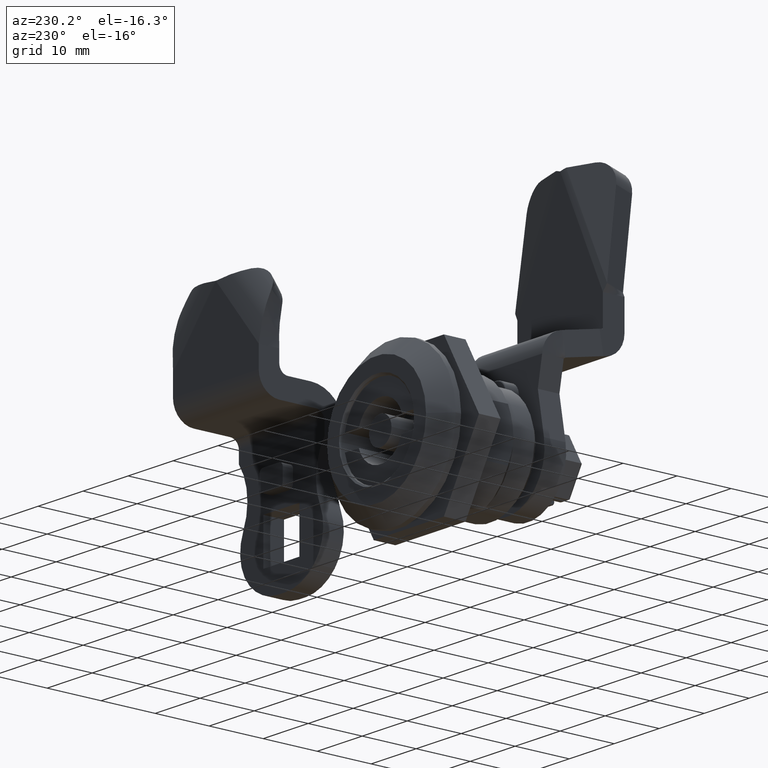
[diagram: clean part render]
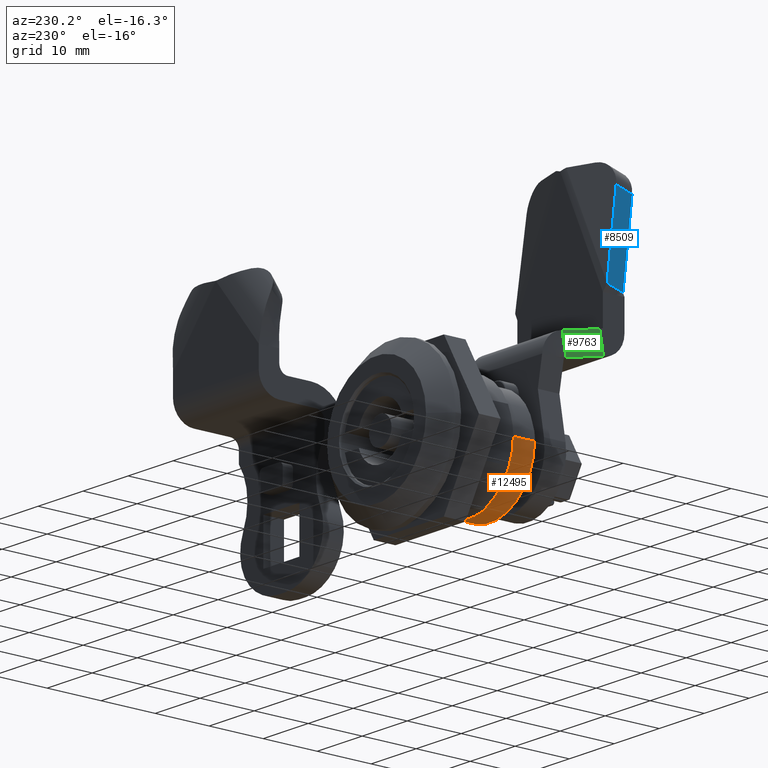
[diagram: same view with three faces highlighted in distinct colors, each labeled with its STEP entity id]
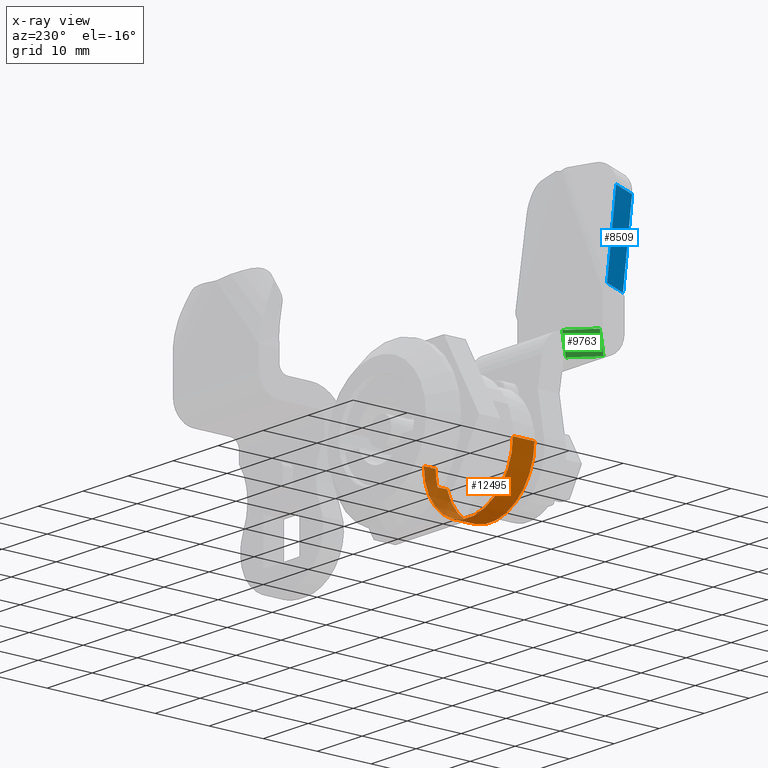
[diagram: x-ray of the same camera — body ghosted, the three highlighted faces saturated]
A machine part, auxiliary view with three faces highlighted in distinct colors.
The next image is the same camera in x-ray (body ghosted, the three faces saturated) — at least one of them is partly hidden behind the body in this view.
Their STEP definitions:

[orange] entity #12495 — the highlighted cylindrical surface (partial cylindrical patch) has radius 9.9 mm, axis along (0, -1, 0).
#1 = B_SPLINE_CURVE_WITH_KNOTS ( 'NONE', 3,
 ( #12090, #13045, #9849, #12974 ),
 .UNSPECIFIED., .F., .F.,
 ( 4, 4 ),
 ( 0.000000000000000000, 1.000000000000000000 ),
 .UNSPECIFIED. ) ;
#266 = CARTESIAN_POINT ( 'NONE',  ( -0.3897637795275589179, -0.6692913385826771977, 1.591810121962477045E-11 ) ) ;
#277 = ORIENTED_EDGE ( 'NONE', *, *, #12113, .F. ) ;
#343 = CARTESIAN_POINT ( 'NONE',  ( -0.3897637795275590844, -0.6692913385826771977, 0.000000000000000000 ) ) ;
#403 = CARTESIAN_POINT ( 'NONE',  ( 0.3738499401279838374, -0.6692913386096640549, -0.1102362285134667330 ) ) ;
#609 = CARTESIAN_POINT ( 'NONE',  ( 0.3897637795275590844, -0.5984251968503937480, 0.000000000000000000 ) ) ;
#818 = CARTESIAN_POINT ( 'NONE',  ( -0.3897637795275590844, -0.5118110236220472231, 0.000000000000000000 ) ) ;
#819 = VERTEX_POINT ( 'NONE', #3461 ) ;
#1255 = FACE_OUTER_BOUND ( 'NONE', #9138, .T. ) ;
#2036 = DIRECTION ( 'NONE',  ( -0.000000000000000000, 1.000000000000000000, -0.000000000000000000 ) ) ;
#2385 = LINE ( 'NONE', #343, #2496 ) ;
#2394 = EDGE_CURVE ( 'NONE', #12945, #13118, #4811, .T. ) ;
#2437 = VERTEX_POINT ( 'NONE', #818 ) ;
#2496 = VECTOR ( 'NONE', #4405, 39.37007874015748143 ) ;
#2687 = VERTEX_POINT ( 'NONE', #266 ) ;
#3189 = ORIENTED_EDGE ( 'NONE', *, *, #4967, .T. ) ;
#3461 = CARTESIAN_POINT ( 'NONE',  ( 0.3897639248009692192, -0.5984253608107118483, -3.134742717868620018E-11 ) ) ;
#3922 = LINE ( 'NONE', #609, #4865 ) ;
#3988 = CARTESIAN_POINT ( 'NONE',  ( 0.000000000000000000, -0.6692913385826771977, 0.000000000000000000 ) ) ;
#4134 = CARTESIAN_POINT ( 'NONE',  ( 0.3738527314198610840, -0.5984294946815180705, -0.1102335667094647975 ) ) ;
#4390 = VERTEX_POINT ( 'NONE', #6023 ) ;
#4405 = DIRECTION ( 'NONE',  ( 0.000000000000000000, 1.000000000000000000, 0.000000000000000000 ) ) ;
#4735 = DIRECTION ( 'NONE',  ( 0.000000000000000000, 1.000000000000000000, 0.000000000000000000 ) ) ;
#4811 = LINE ( 'NONE', #6843, #8012 ) ;
#4865 = VECTOR ( 'NONE', #4735, 39.37007874015748143 ) ;
#4967 = EDGE_CURVE ( 'NONE', #819, #13118, #1, .T. ) ;
#5117 = ORIENTED_EDGE ( 'NONE', *, *, #11986, .T. ) ;
#5122 = CARTESIAN_POINT ( 'NONE',  ( 0.000000000000000000, 0.2007874015748031815, 0.000000000000000000 ) ) ;
#5893 = ORIENTED_EDGE ( 'NONE', *, *, #2394, .F. ) ;
#6023 = CARTESIAN_POINT ( 'NONE',  ( 0.3897637795275590844, -0.5118110236220472231, 0.000000000000000000 ) ) ;
#6843 = CARTESIAN_POINT ( 'NONE',  ( 0.3738499377850819094, -0.6692913385826771977, -0.1102362365544925366 ) ) ;
#7614 = ORIENTED_EDGE ( 'NONE', *, *, #12568, .T. ) ;
#8012 = VECTOR ( 'NONE', #9750, 39.37007874015748143 ) ;
#8106 = DIRECTION ( 'NONE',  ( 0.000000000000000000, 0.000000000000000000, -1.000000000000000000 ) ) ;
#8232 = ORIENTED_EDGE ( 'NONE', *, *, #13019, .T. ) ;
#9138 = EDGE_LOOP ( 'NONE', ( #5893, #8232, #5117, #7614, #277, #3189 ) ) ;
#9242 = DIRECTION ( 'NONE',  ( 0.000000000000000000, -1.000000000000000000, 0.000000000000000000 ) ) ;
#9638 = DIRECTION ( 'NONE',  ( -1.000000000000000000, 0.000000000000000000, 0.000000000000000000 ) ) ;
#9750 = DIRECTION ( 'NONE',  ( 0.000000000000000000, 1.000000000000000000, 0.000000000000000000 ) ) ;
#9849 = CARTESIAN_POINT ( 'NONE',  ( 0.3843863750908347865, -0.5984251968503936370, -0.07450346059388258946 ) ) ;
#10593 = CIRCLE ( 'NONE', #10798, 0.3897637795275590844 ) ;
#10595 = CYLINDRICAL_SURFACE ( 'NONE', #11255, 0.3897637795275590844 ) ;
#10798 = AXIS2_PLACEMENT_3D ( 'NONE', #11753, #11943, #9638 ) ;
#11025 = CIRCLE ( 'NONE', #12111, 0.3897637795275590844 ) ;
#11255 = AXIS2_PLACEMENT_3D ( 'NONE', #5122, #9242, #13394 ) ;
#11753 = CARTESIAN_POINT ( 'NONE',  ( 0.000000000000000000, -0.5118110236220472231, 0.000000000000000000 ) ) ;
#11943 = DIRECTION ( 'NONE',  ( 0.000000000000000000, -1.000000000000000000, 0.000000000000000000 ) ) ;
#11986 = EDGE_CURVE ( 'NONE', #2687, #2437, #2385, .T. ) ;
#12090 = CARTESIAN_POINT ( 'NONE',  ( 0.3897639248009692192, -0.5984253608107118483, -3.134742717868620018E-11 ) ) ;
#12111 = AXIS2_PLACEMENT_3D ( 'NONE', #3988, #2036, #8106 ) ;
#12113 = EDGE_CURVE ( 'NONE', #819, #4390, #3922, .T. ) ;
#12495 = ADVANCED_FACE ( 'NONE', ( #1255 ), #10595, .T. ) ;
#12568 = EDGE_CURVE ( 'NONE', #2437, #4390, #10593, .T. ) ;
#12945 = VERTEX_POINT ( 'NONE', #403 ) ;
#12974 = CARTESIAN_POINT ( 'NONE',  ( 0.3738527314198610840, -0.5984294946815180705, -0.1102335667094647975 ) ) ;
#13019 = EDGE_CURVE ( 'NONE', #12945, #2687, #11025, .T. ) ;
#13045 = CARTESIAN_POINT ( 'NONE',  ( 0.3897637795275590844, -0.5984251968503936370, -0.03725382080174446248 ) ) ;
#13118 = VERTEX_POINT ( 'NONE', #4134 ) ;
#13394 = DIRECTION ( 'NONE',  ( -1.000000000000000000, 0.000000000000000000, 0.000000000000000000 ) ) ;

[blue] entity #8509 — the highlighted planar face has unit normal (-0.9643, -0.2641, -0.0169).
#162 = VECTOR ( 'NONE', #6113, 39.37007874015748854 ) ;
#361 = LINE ( 'NONE', #932, #6755 ) ;
#734 = LINE ( 'NONE', #6025, #11150 ) ;
#932 = CARTESIAN_POINT ( 'NONE',  ( -0.4021705892453110165, -1.188137241893342466, 1.018479500720070874 ) ) ;
#1069 = EDGE_CURVE ( 'NONE', #6114, #3442, #8048, .T. ) ;
#2373 = DIRECTION ( 'NONE',  ( 0.01693441380321100004, -0.1254440722982030076, 0.9919561534434798711 ) ) ;
#2491 = PLANE ( 'NONE',  #13253 ) ;
#2911 = ORIENTED_EDGE ( 'NONE', *, *, #8150, .T. ) ;
#3061 = CARTESIAN_POINT ( 'NONE',  ( -0.3605811744759083171, -1.338736416060675394, 0.9987245287044805853 ) ) ;
#3377 = DIRECTION ( 'NONE',  ( -0.9643486025195532330, -0.2640927837857870442, -0.01693441380320922715 ) ) ;
#3418 = DIRECTION ( 'NONE',  ( 0.01693441380320179213, -0.1254440722981999545, 0.9919561534434804262 ) ) ;
#3442 = VERTEX_POINT ( 'NONE', #7817 ) ;
#4153 = ORIENTED_EDGE ( 'NONE', *, *, #7910, .T. ) ;
#5103 = VECTOR ( 'NONE', #2373, 39.37007874015748143 ) ;
#5908 = CARTESIAN_POINT ( 'NONE',  ( -0.3505008541683909962, -1.413407818575350250, 1.589192901213401621 ) ) ;
#6025 = CARTESIAN_POINT ( 'NONE',  ( -0.3813758818606191037, -1.263436828976995052, 1.008602014712344452 ) ) ;
#6113 = DIRECTION ( 'NONE',  ( -0.2640927837858080274, 0.9563047559630272199, 0.1254440722982050616 ) ) ;
#6114 = VERTEX_POINT ( 'NONE', #11375 ) ;
#6371 = CARTESIAN_POINT ( 'NONE',  ( -0.4021705892452845932, -1.188137241893262752, 1.018479500719934761 ) ) ;
#6755 = VECTOR ( 'NONE', #3418, 39.37007874015748143 ) ;
#7347 = EDGE_LOOP ( 'NONE', ( #4153, #10539, #11648, #2911 ) ) ;
#7817 = CARTESIAN_POINT ( 'NONE',  ( -0.3920902689377642192, -1.262808644408094594, 1.608947873228889769 ) ) ;
#7909 = VERTEX_POINT ( 'NONE', #6371 ) ;
#7910 = EDGE_CURVE ( 'NONE', #12290, #6114, #11658, .T. ) ;
#8048 = LINE ( 'NONE', #5908, #162 ) ;
#8150 = EDGE_CURVE ( 'NONE', #7909, #12290, #734, .T. ) ;
#8509 = ADVANCED_FACE ( 'NONE', ( #8831 ), #2491, .T. ) ;
#8570 = DIRECTION ( 'NONE',  ( -0.01693441380320190662, 0.1254440722982000933, -0.9919561534434804262 ) ) ;
#8831 = FACE_OUTER_BOUND ( 'NONE', #7347, .T. ) ;
#9290 = EDGE_CURVE ( 'NONE', #7909, #3442, #361, .T. ) ;
#9474 = CARTESIAN_POINT ( 'NONE',  ( -0.3605811744759516158, -1.338736416060653411, 0.9987245287043661213 ) ) ;
#10539 = ORIENTED_EDGE ( 'NONE', *, *, #1069, .T. ) ;
#10741 = CARTESIAN_POINT ( 'NONE',  ( -0.3778969827448818153, -1.289207267639015830, 1.212383227641732342 ) ) ;
#10962 = DIRECTION ( 'NONE',  ( 0.2640927837857874882, -0.9563047559630336591, -0.1254440722981990941 ) ) ;
#11150 = VECTOR ( 'NONE', #10962, 39.37007874015748854 ) ;
#11375 = CARTESIAN_POINT ( 'NONE',  ( -0.3505008541683681256, -1.413407818575437069, 1.589192901213153597 ) ) ;
#11648 = ORIENTED_EDGE ( 'NONE', *, *, #9290, .F. ) ;
#11658 = LINE ( 'NONE', #9474, #5103 ) ;
#12290 = VERTEX_POINT ( 'NONE', #3061 ) ;
#13253 = AXIS2_PLACEMENT_3D ( 'NONE', #10741, #3377, #8570 ) ;

[green] entity #9763 — the highlighted planar face has unit normal (-0.982, 0.186, -0.0328).
#280 = VECTOR ( 'NONE', #3111, 39.37007874015748143 ) ;
#806 = CARTESIAN_POINT ( 'NONE',  ( -0.3740157480314984517, -1.185229242729523680, 0.5966422230592480780 ) ) ;
#924 = LINE ( 'NONE', #7155, #2493 ) ;
#1061 = FACE_OUTER_BOUND ( 'NONE', #1606, .T. ) ;
#1606 = EDGE_LOOP ( 'NONE', ( #4068, #1862, #12898, #6899 ) ) ;
#1833 = EDGE_CURVE ( 'NONE', #11428, #12065, #924, .T. ) ;
#1862 = ORIENTED_EDGE ( 'NONE', *, *, #12244, .F. ) ;
#2280 = DIRECTION ( 'NONE',  ( -0.1888473936501020578, -0.9670875624945222127, 0.1705236299753400686 ) ) ;
#2493 = VECTOR ( 'NONE', #11490, 39.37007874015748854 ) ;
#3111 = DIRECTION ( 'NONE',  ( -1.160183060733288900E-14, -0.1736481776669638599, -0.9848077530122020251 ) ) ;
#4068 = ORIENTED_EDGE ( 'NONE', *, *, #6053, .T. ) ;
#4109 = CARTESIAN_POINT ( 'NONE',  ( -0.3279633867196877772, -0.9493950859147046728, 0.5550582982401311982 ) ) ;
#5569 = CARTESIAN_POINT ( 'NONE',  ( -0.3279633867129189140, -0.9220489160997558109, 0.7101461333419012423 ) ) ;
#5934 = VERTEX_POINT ( 'NONE', #4109 ) ;
#6053 = EDGE_CURVE ( 'NONE', #5934, #10717, #10477, .T. ) ;
#6086 = CARTESIAN_POINT ( 'NONE',  ( -0.3740157480314976191, -1.157883073018185049, 0.7517300581792006886 ) ) ;
#6171 = DIRECTION ( 'NONE',  ( -1.170938346286880030E-14, -0.1736481776669639987, -0.9848077530122020251 ) ) ;
#6899 = ORIENTED_EDGE ( 'NONE', *, *, #9757, .T. ) ;
#7155 = CARTESIAN_POINT ( 'NONE',  ( -0.3740157480314960647, -1.157883073018133757, 0.7517300581792205616 ) ) ;
#7416 = CARTESIAN_POINT ( 'NONE',  ( -0.3279633867196917740, -0.9493950859147125554, 0.5550582982400629195 ) ) ;
#8088 = LINE ( 'NONE', #13269, #280 ) ;
#8223 = DIRECTION ( 'NONE',  ( -0.9820064469806442098, 0.1859783774028081482, -0.03279300576449153265 ) ) ;
#9188 = DIRECTION ( 'NONE',  ( 0.1888473936501409989, 0.9670875624945040050, -0.1705236299754009921 ) ) ;
#9757 = EDGE_CURVE ( 'NONE', #12065, #5934, #8088, .T. ) ;
#9763 = ADVANCED_FACE ( 'NONE', ( #1061 ), #10074, .T. ) ;
#10074 = PLANE ( 'NONE',  #11967 ) ;
#10305 = CARTESIAN_POINT ( 'NONE',  ( -0.3740157480315011718, -1.157883073018216580, 0.7517300581791457326 ) ) ;
#10477 = LINE ( 'NONE', #7416, #11171 ) ;
#10717 = VERTEX_POINT ( 'NONE', #806 ) ;
#11171 = VECTOR ( 'NONE', #2280, 39.37007874015748854 ) ;
#11428 = VERTEX_POINT ( 'NONE', #6086 ) ;
#11464 = LINE ( 'NONE', #10305, #12761 ) ;
#11490 = DIRECTION ( 'NONE',  ( 0.1888473936501018913, 0.9670875624945224347, -0.1705236299753399021 ) ) ;
#11967 = AXIS2_PLACEMENT_3D ( 'NONE', #12384, #8223, #9188 ) ;
#12065 = VERTEX_POINT ( 'NONE', #5569 ) ;
#12244 = EDGE_CURVE ( 'NONE', #11428, #10717, #11464, .T. ) ;
#12384 = CARTESIAN_POINT ( 'NONE',  ( -0.3248031496062992463, -0.9195384258037597736, 0.6297486148385826876 ) ) ;
#12761 = VECTOR ( 'NONE', #6171, 39.37007874015748854 ) ;
#12898 = ORIENTED_EDGE ( 'NONE', *, *, #1833, .T. ) ;
#13269 = CARTESIAN_POINT ( 'NONE',  ( -0.3279633867196888319, -0.9357220010589977210, 0.6326022158004076523 ) ) ;